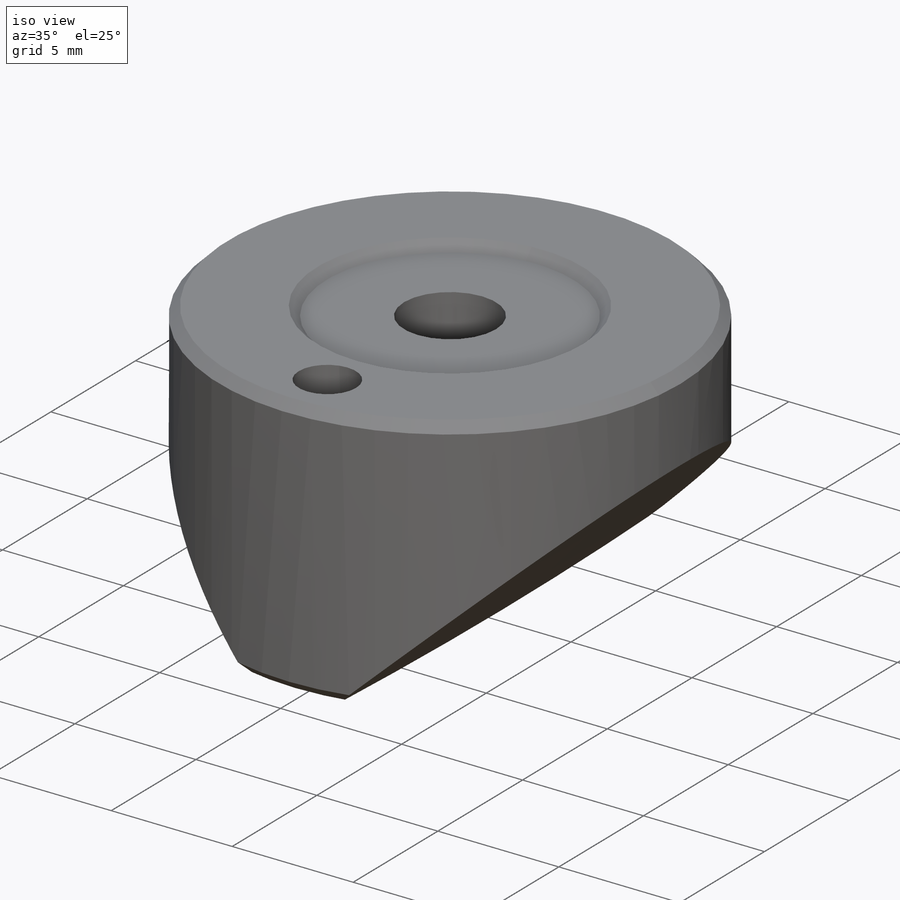
[diagram: iso view]
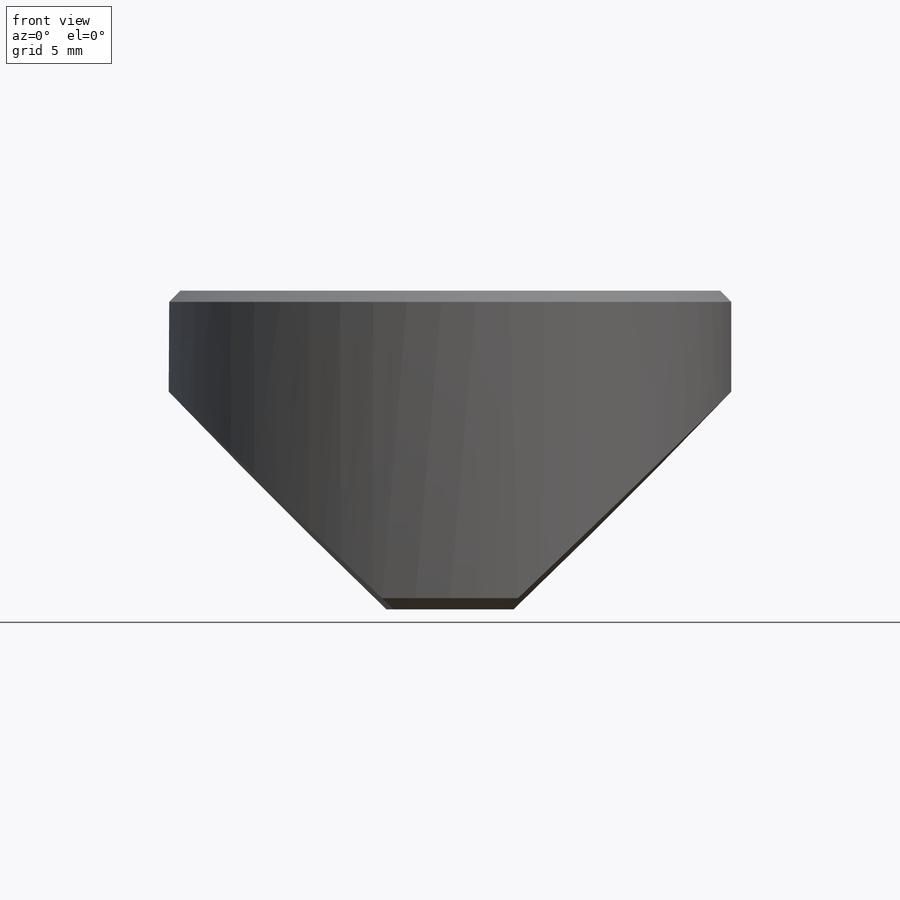
[diagram: front view]
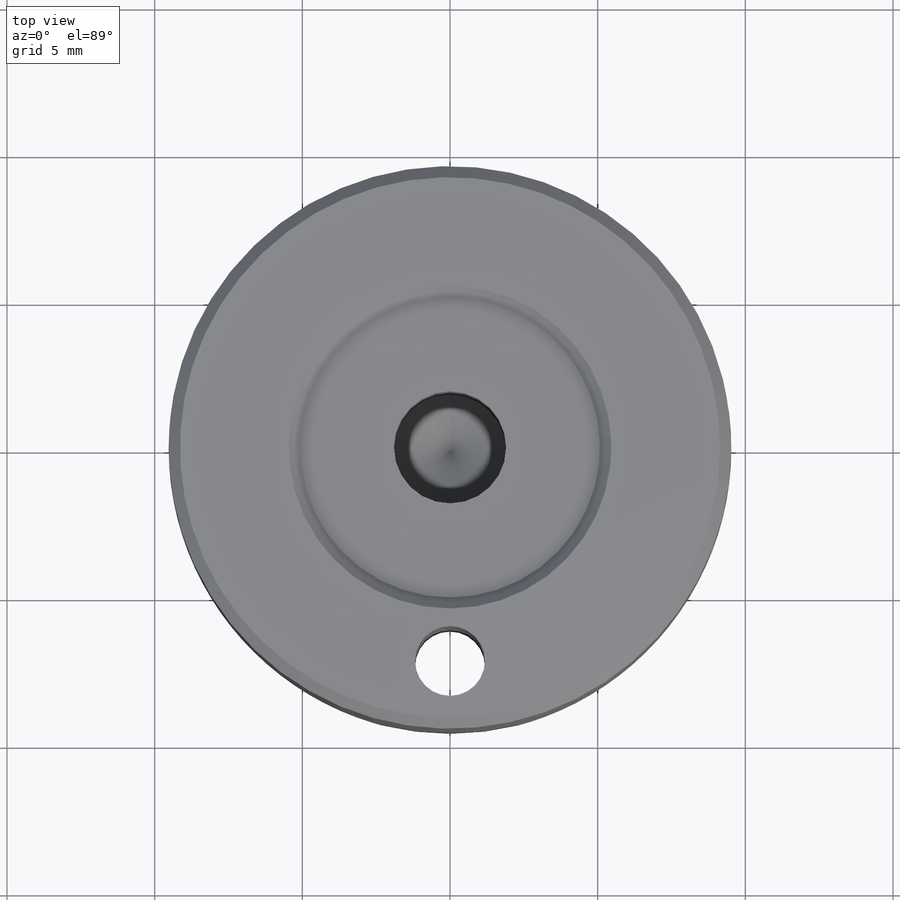
[diagram: top view]
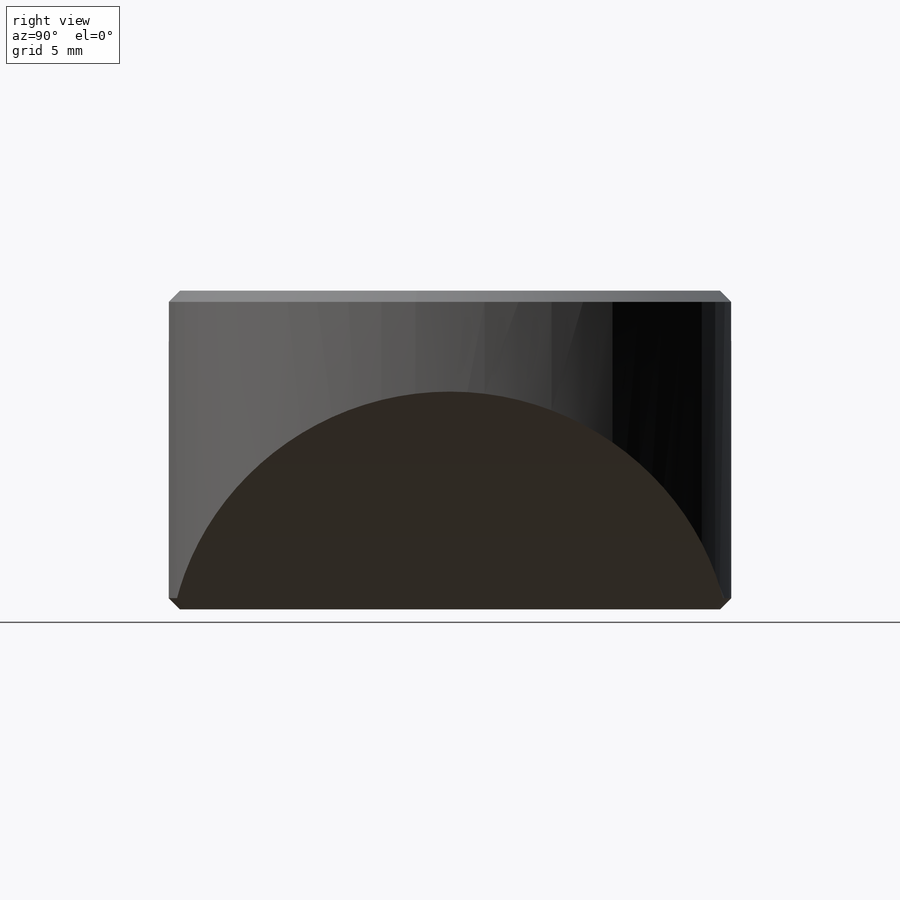
[diagram: right view]
SOLIDWORKS PART (.sldprt)
format: sldprt  version: not decoded by parser v0  size: 515,072 bytes
history: native  units: mm
features: sketch x8, cut_revolve x2, material x1, revolve x1, cut_extrude x1, chamfer x1, hole x1, thread x1, mirror x1, plane x1 (+13 scaffold rows collapsed)
feature tree (31):
  scaffold x13  (default folders/planes/origin — collapsed)
  material  "440C Rc 58"
  sketch  "V-surface mate"  dims[D1=1.27mm]
  sketch  "Sketch3"  dims[c1.D1=0.635mm c1.D2=10.16mm c1.D3=19.05mm c1.D4=19.05mm c2.D3=9.525mm c2.D2=16.51mm c2.D4=6.35mm]
  revolve  "Revolve1"  Angle=360deg
  sketch  "Sketch10"  dims[D1=2.3622mm D2=7.239mm]
  cut_extrude  "Cut-Extrude1"  [1 undecoded]
  chamfer  "Chamfer1"  Distance=0.381mm Angle=45deg
  hole  "#10-24 Tapped Hole1"  Diameter=3.7973mm Depth=6.35mm
  sketch  "Sketch14"
  sketch  "Sketch13"  dims[hole-wizard template sketch: 47 standard entries collapsed; hole parameters kept: c15.Tap Drill Depth=6.35mm c15.D3=~14.816244mm c15.Drill Angle=118.0deg]
  thread  "Hole Thread1"  Diameter=5.08mm  [1 undecoded]
  sketch  "Sketch15"  dims[D1=250.0122mm D2=250.0122mm]
  cut_revolve  "Cut-Revolve3"  Angle=360deg
  mirror  "Mirror2"
  sketch  "Sketch16"  dims[D1=0.381mm D2=5.08mm]
  cut_revolve  "Cut-Revolve4"  Angle=360deg
  plane  "Plane1"  Offset=0mm
  sketch  "Sketch17"
decode coverage: 12 of 16 modeling features carry decoded parameters
note: ~ marks probable driven/reference dimensions
note: 2 parameter values undecoded
note: suppression state not decoded; provenance and decode notes live in map.json
